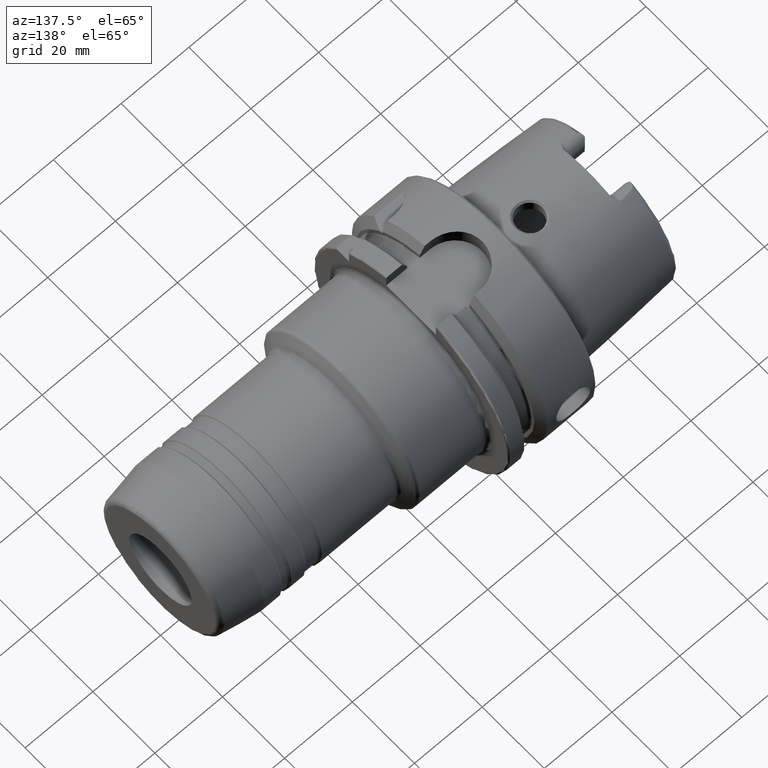
[diagram: clean part render]
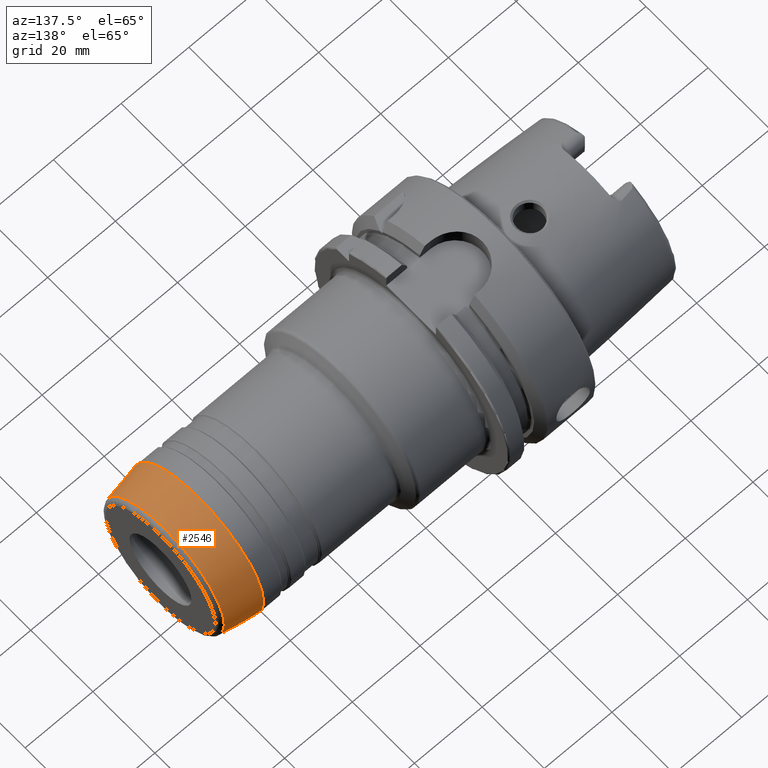
[diagram: same view with one face highlighted and labeled with its STEP entity id]
A machine part, auxiliary view. The second image highlights one B-rep face of the part: STEP entity #2546.
In plain terms, the highlighted conical surface has half-angle 10 deg.
Its self-contained STEP definition (entity closure, byte-faithful):
#97=CONICAL_SURFACE('',#2718,20.,0.174532925199432);
#209=FACE_OUTER_BOUND('',#346,.T.);
#346=EDGE_LOOP('',(#1689,#1690,#1691,#1692,#1693,#1694,#1695,#1696));
#487=LINE('',#3959,#603);
#603=VECTOR('',#3115,20.);
#729=CIRCLE('',#2714,19.2185621827524);
#730=CIRCLE('',#2715,19.2185621827524);
#731=CIRCLE('',#2716,19.2185621827524);
#733=CIRCLE('',#2719,20.9848077530122);
#734=CIRCLE('',#2720,20.9848077530122);
#735=CIRCLE('',#2721,20.9848077530122);
#955=VERTEX_POINT('',#3949);
#956=VERTEX_POINT('',#3951);
#957=VERTEX_POINT('',#3953);
#958=VERTEX_POINT('',#3958);
#959=VERTEX_POINT('',#3960);
#960=VERTEX_POINT('',#3962);
#1252=EDGE_CURVE('',#955,#956,#729,.T.);
#1253=EDGE_CURVE('',#956,#957,#730,.T.);
#1254=EDGE_CURVE('',#957,#955,#731,.T.);
#1256=EDGE_CURVE('',#956,#958,#487,.T.);
#1257=EDGE_CURVE('',#959,#958,#733,.T.);
#1258=EDGE_CURVE('',#960,#959,#734,.T.);
#1259=EDGE_CURVE('',#958,#960,#735,.T.);
#1689=ORIENTED_EDGE('',*,*,#1254,.F.);
#1690=ORIENTED_EDGE('',*,*,#1253,.F.);
#1691=ORIENTED_EDGE('',*,*,#1256,.T.);
#1692=ORIENTED_EDGE('',*,*,#1257,.F.);
#1693=ORIENTED_EDGE('',*,*,#1258,.F.);
#1694=ORIENTED_EDGE('',*,*,#1259,.F.);
#1695=ORIENTED_EDGE('',*,*,#1256,.F.);
#1696=ORIENTED_EDGE('',*,*,#1252,.F.);
#2546=ADVANCED_FACE('',(#209),#97,.T.);
#2714=AXIS2_PLACEMENT_3D('',#3952,#3105,#3106);
#2715=AXIS2_PLACEMENT_3D('',#3954,#3107,#3108);
#2716=AXIS2_PLACEMENT_3D('',#3955,#3109,#3110);
#2718=AXIS2_PLACEMENT_3D('',#3957,#3113,#3114);
#2719=AXIS2_PLACEMENT_3D('',#3961,#3116,#3117);
#2720=AXIS2_PLACEMENT_3D('',#3963,#3118,#3119);
#2721=AXIS2_PLACEMENT_3D('',#3964,#3120,#3121);
#3105=DIRECTION('center_axis',(1.,0.,0.));
#3106=DIRECTION('ref_axis',(0.,-1.,3.06161699786838E-17));
#3107=DIRECTION('center_axis',(1.,0.,0.));
#3108=DIRECTION('ref_axis',(0.,-1.,3.06161699786838E-17));
#3109=DIRECTION('center_axis',(1.,0.,0.));
#3110=DIRECTION('ref_axis',(0.,-1.,3.06161699786838E-17));
#3113=DIRECTION('center_axis',(-1.,0.,0.));
#3114=DIRECTION('ref_axis',(0.,1.,0.));
#3115=DIRECTION('',(-0.984807753012208,-0.17364817766693,-2.12657684957576E-17));
#3116=DIRECTION('center_axis',(-1.,0.,0.));
#3117=DIRECTION('ref_axis',(0.,-1.,3.06161699786838E-17));
#3118=DIRECTION('center_axis',(-1.,0.,0.));
#3119=DIRECTION('ref_axis',(0.,-1.,3.06161699786838E-17));
#3120=DIRECTION('center_axis',(-1.,0.,0.));
#3121=DIRECTION('ref_axis',(0.,-1.,3.06161699786838E-17));
#3949=CARTESIAN_POINT('',(98.7604722665004,-2.35359506613221E-15,19.2185621827524));
#3951=CARTESIAN_POINT('',(98.7604722665004,-19.2185621827524,-2.35359506613221E-15));
#3952=CARTESIAN_POINT('Origin',(98.7604722665004,0.,-2.94199383266526E-15));
#3953=CARTESIAN_POINT('',(98.7604722665004,19.2185621827524,-1.1767975330661E-15));
#3954=CARTESIAN_POINT('Origin',(98.7604722665004,0.,-2.94199383266526E-15));
#3955=CARTESIAN_POINT('Origin',(98.7604722665004,0.,-2.94199383266526E-15));
#3957=CARTESIAN_POINT('Origin',(94.3287181803823,0.,0.));
#3958=CARTESIAN_POINT('',(88.7435958749055,-20.9848077530122,-2.5698977645449E-15));
#3959=CARTESIAN_POINT('',(94.3287181803823,-20.,-2.44929359829471E-15));
#3960=CARTESIAN_POINT('',(88.7435958749055,20.9848077530122,-6.42474441136224E-15));
#3961=CARTESIAN_POINT('Origin',(88.7435958749055,0.,-3.21237220568112E-15));
#3962=CARTESIAN_POINT('',(88.7435958749055,-2.5698977645449E-15,20.9848077530122));
#3963=CARTESIAN_POINT('Origin',(88.7435958749055,0.,-3.21237220568112E-15));
#3964=CARTESIAN_POINT('Origin',(88.7435958749055,0.,-3.21237220568112E-15));